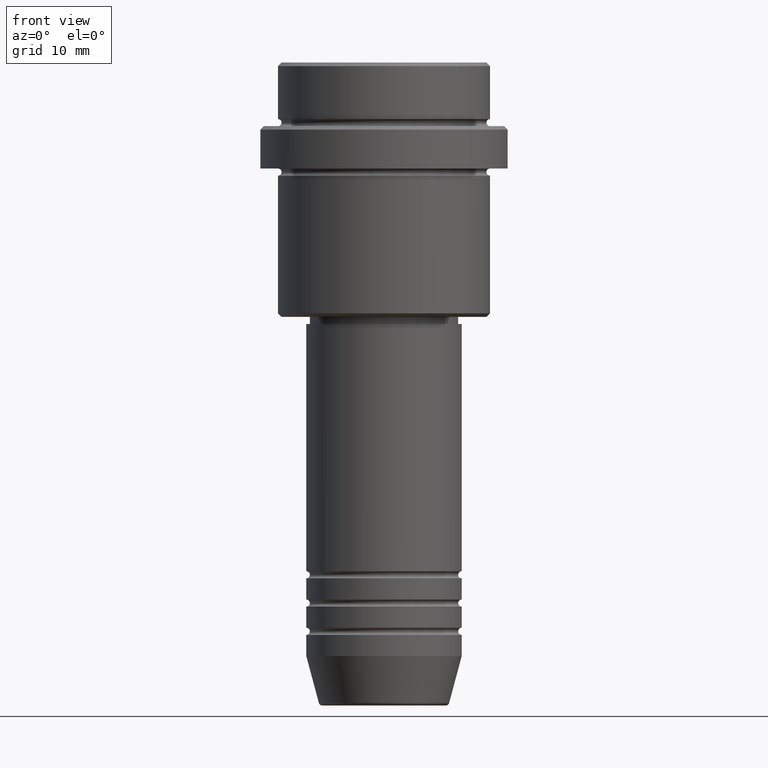
[diagram: clean part render]
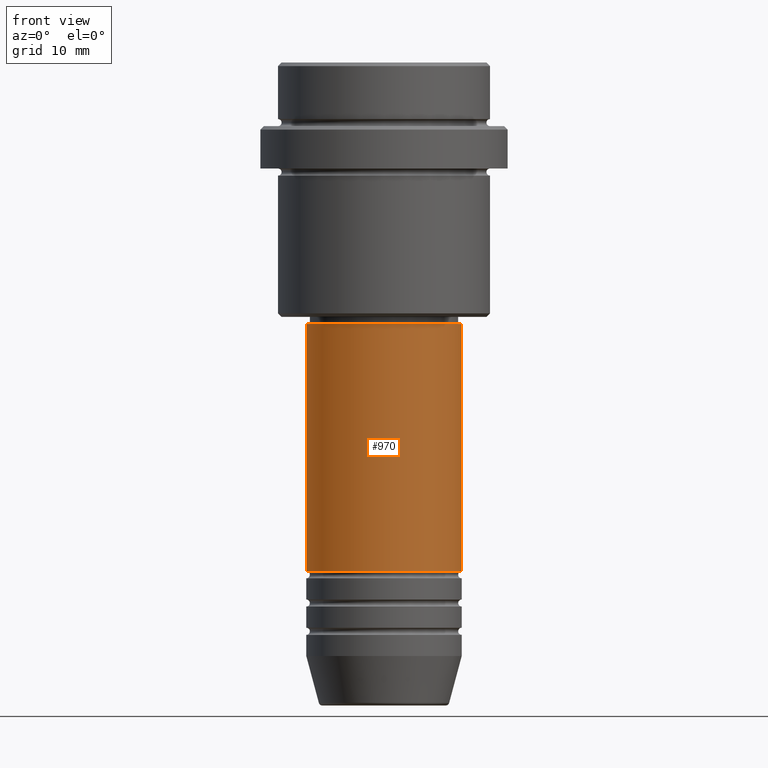
[diagram: same view with one face highlighted and labeled with its STEP entity id]
A machine part, front view. The second image highlights one B-rep face of the part: STEP entity #970.
In plain terms, the highlighted cylindrical surface (partial cylindrical patch) has radius 11 mm, axis along (-0, -0, 1).
Its self-contained STEP definition (entity closure, byte-faithful):
#33 = FACE_OUTER_BOUND ( 'NONE', #1110, .T. ) ;
#53 = CARTESIAN_POINT ( 'NONE',  ( 0.000000000000000000, 0.000000000000000000, -37.00000000000000000 ) ) ;
#67 = VECTOR ( 'NONE', #1136, 1000.000000000000000 ) ;
#78 = DIRECTION ( 'NONE',  ( 1.000000000000000000, 0.000000000000000000, 0.000000000000000000 ) ) ;
#138 = DIRECTION ( 'NONE',  ( 1.000000000000000000, 0.000000000000000000, 0.000000000000000000 ) ) ;
#267 = CARTESIAN_POINT ( 'NONE',  ( 0.000000000000000000, 0.000000000000000000, 0.000000000000000000 ) ) ;
#274 = EDGE_CURVE ( 'NONE', #1158, #288, #857, .T. ) ;
#288 = VERTEX_POINT ( 'NONE', #801 ) ;
#342 = VECTOR ( 'NONE', #656, 1000.000000000000000 ) ;
#403 = AXIS2_PLACEMENT_3D ( 'NONE', #953, #1347, #1382 ) ;
#424 = VERTEX_POINT ( 'NONE', #672 ) ;
#516 = LINE ( 'NONE', #554, #342 ) ;
#554 = CARTESIAN_POINT ( 'NONE',  ( 11.00000000000000000, 0.000000000000000000, 0.000000000000000000 ) ) ;
#656 = DIRECTION ( 'NONE',  ( -0.000000000000000000, -0.000000000000000000, 1.000000000000000000 ) ) ;
#672 = CARTESIAN_POINT ( 'NONE',  ( -10.99999999999999822, 1.347111479062088207E-15, -37.00000000000000000 ) ) ;
#685 = CARTESIAN_POINT ( 'NONE',  ( 10.99999999999999822, 0.000000000000000000, -37.00000000000000000 ) ) ;
#732 = DIRECTION ( 'NONE',  ( -0.000000000000000000, -0.000000000000000000, 1.000000000000000000 ) ) ;
#801 = CARTESIAN_POINT ( 'NONE',  ( 11.00000000000000000, 0.000000000000000000, -71.99999999999987210 ) ) ;
#803 = LINE ( 'NONE', #1219, #67 ) ;
#847 = ORIENTED_EDGE ( 'NONE', *, *, #274, .T. ) ;
#857 = CIRCLE ( 'NONE', #403, 11.00000000000000000 ) ;
#936 = DIRECTION ( 'NONE',  ( -0.000000000000000000, -0.000000000000000000, 1.000000000000000000 ) ) ;
#953 = CARTESIAN_POINT ( 'NONE',  ( 0.000000000000000000, 0.000000000000000000, -71.99999999999987210 ) ) ;
#970 = ADVANCED_FACE ( 'NONE', ( #33 ), #1040, .T. ) ;
#997 = CIRCLE ( 'NONE', #1104, 10.99999999999999822 ) ;
#1015 = VERTEX_POINT ( 'NONE', #685 ) ;
#1039 = EDGE_CURVE ( 'NONE', #1158, #424, #803, .T. ) ;
#1040 = CYLINDRICAL_SURFACE ( 'NONE', #1302, 11.00000000000000000 ) ;
#1052 = ORIENTED_EDGE ( 'NONE', *, *, #1039, .F. ) ;
#1104 = AXIS2_PLACEMENT_3D ( 'NONE', #53, #732, #78 ) ;
#1110 = EDGE_LOOP ( 'NONE', ( #1052, #847, #1359, #1128 ) ) ;
#1128 = ORIENTED_EDGE ( 'NONE', *, *, #1129, .F. ) ;
#1129 = EDGE_CURVE ( 'NONE', #424, #1015, #997, .T. ) ;
#1136 = DIRECTION ( 'NONE',  ( -0.000000000000000000, -0.000000000000000000, 1.000000000000000000 ) ) ;
#1158 = VERTEX_POINT ( 'NONE', #1389 ) ;
#1219 = CARTESIAN_POINT ( 'NONE',  ( -11.00000000000000000, 1.347111479062088405E-15, 0.000000000000000000 ) ) ;
#1226 = EDGE_CURVE ( 'NONE', #288, #1015, #516, .T. ) ;
#1302 = AXIS2_PLACEMENT_3D ( 'NONE', #267, #936, #138 ) ;
#1347 = DIRECTION ( 'NONE',  ( -0.000000000000000000, -0.000000000000000000, 1.000000000000000000 ) ) ;
#1359 = ORIENTED_EDGE ( 'NONE', *, *, #1226, .T. ) ;
#1382 = DIRECTION ( 'NONE',  ( 1.000000000000000000, 0.000000000000000000, 0.000000000000000000 ) ) ;
#1389 = CARTESIAN_POINT ( 'NONE',  ( -11.00000000000000000, 1.347111479062088405E-15, -71.99999999999987210 ) ) ;